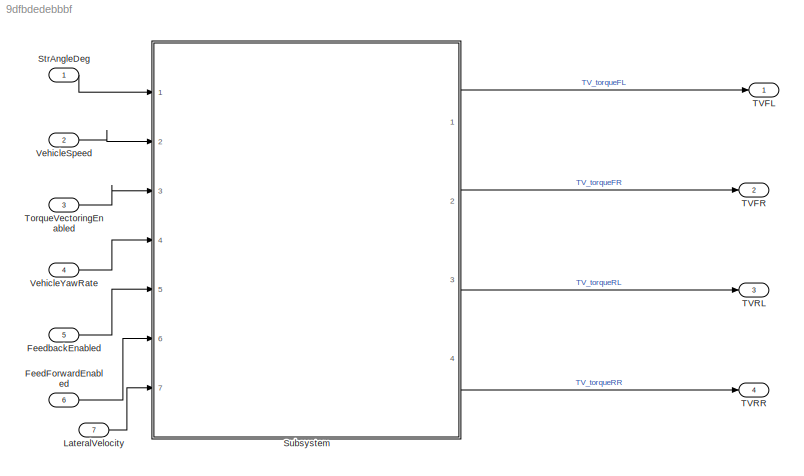
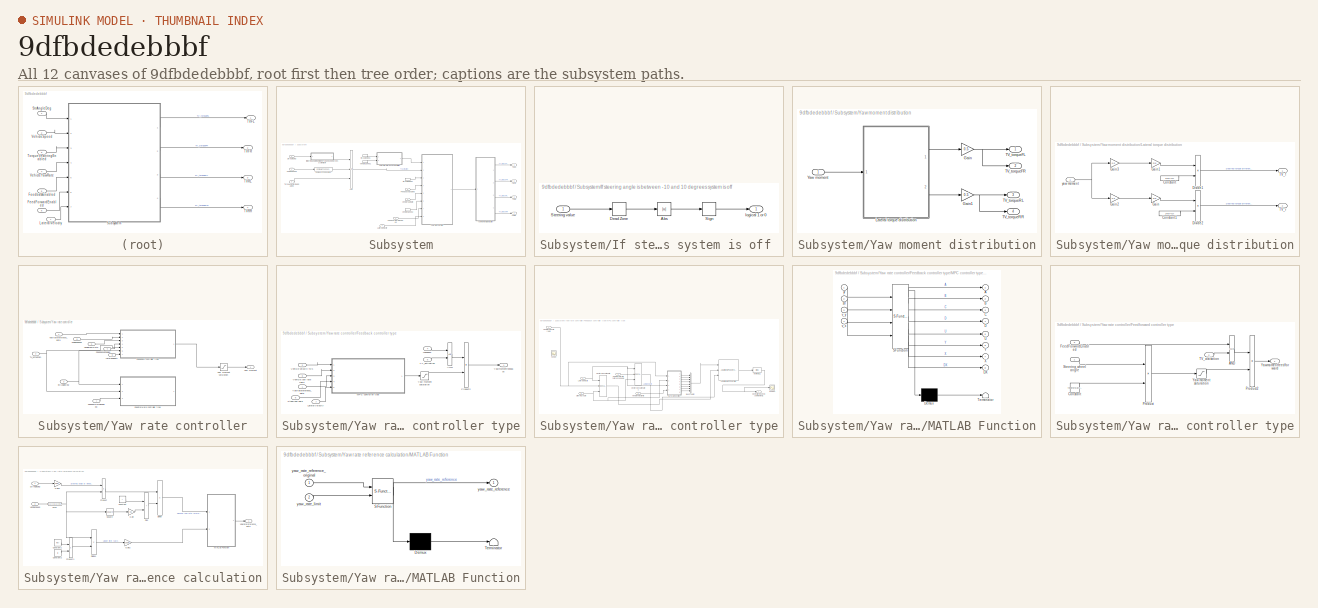
[diagram: thumbnail index - all 12 canvases of the model, root first then tree order]
MODEL slx_9dfbdedebbbf
KIND model
CONFIG AbsTol = auto
CONFIG EnableMultiTasking = off
CONFIG FixedStep = 0.001
CONFIG MaxStep = auto
CONFIG MinStep = auto
CONFIG RelTol = 1e-3
CONFIG SampleTimeConstraint = Unconstrained
CONFIG SolverName = FixedStepAuto
CONFIG StartTime = 0.0
CONFIG StopTime = 10.0
WORKSPACE source: mxarray member
WORKSPACE DeadzoneYawrateError = 10
WORKSPACE SteeringDeadzonelimit = 10
BLOCK [Inport] FeedForwardEnabled
  Port = 6
BLOCK [Inport] FeedbackEnabled
  Port = 5
BLOCK [Inport] LateralVelocity
  Port = 7
BLOCK [Inport] StrAngleDeg
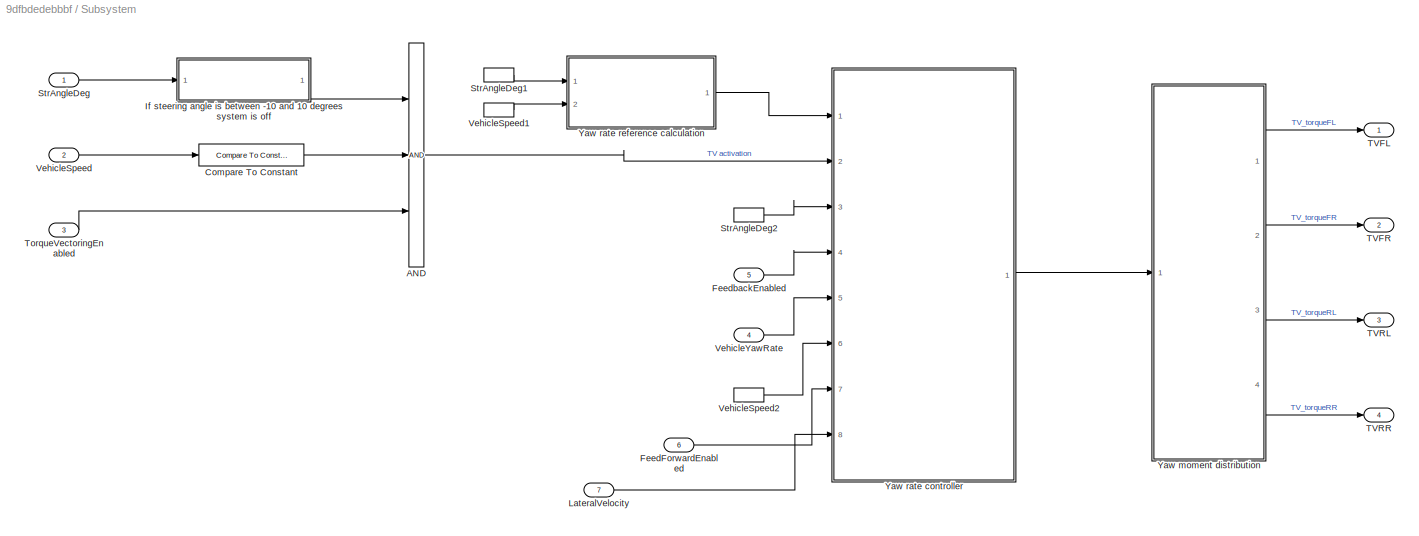
BLOCK [SubSystem] Subsystem
  Ports = [7, 4]
  RequestExecContextInheritance = off
BLOCK [Logic] Subsystem/AND
  AllPortsSameDT = off
  Inputs = 3
  OutDataTypeStr = boolean
  Ports = [3, 1]
BLOCK [Reference] Subsystem/Compare To Constant  REF=simulink/Logic and Bit
Operations/Compare
To Constant
  Ports = [1, 1]
  SourceBlock = simulink/Logic and Bit\nOperations/Compare\nTo Constant
  SourceProductBaseCode = SL
  SourceType = Compare To Constant
BLOCK [Inport] Subsystem/FeedForwardEnabled
  Port = 6
BLOCK [Inport] Subsystem/FeedbackEnabled
  Port = 5
BLOCK [SubSystem] Subsystem/If steering angle is between -10 and 10 degrees system is off 
  Ports = [1, 1]
  RequestExecContextInheritance = off
BLOCK [Abs] Subsystem/If steering angle is between -10 and 10 degrees system is off /Abs
  SaturateOnIntegerOverflow = off
BLOCK [DeadZone] Subsystem/If steering angle is between -10 and 10 degrees system is off /Dead Zone
  LowerValue = -SteeringDeadzonelimit
  UpperValue = SteeringDeadzonelimit
BLOCK [Signum] Subsystem/If steering angle is between -10 and 10 degrees system is off /Sign
BLOCK [Inport] Subsystem/If steering angle is between -10 and 10 degrees system is off /Steering value
BLOCK [Outport] Subsystem/If steering angle is between -10 and 10 degrees system is off /logical 1 or 0
BLOCK [Inport] Subsystem/LateralVelocity
  Port = 7
BLOCK [Inport] Subsystem/StrAngleDeg
BLOCK [InportShadow] Subsystem/StrAngleDeg1
BLOCK [InportShadow] Subsystem/StrAngleDeg2
BLOCK [Outport] Subsystem/TVFL
BLOCK [Outport] Subsystem/TVFR
  Port = 2
BLOCK [Outport] Subsystem/TVRL
  Port = 3
BLOCK [Outport] Subsystem/TVRR
  Port = 4
BLOCK [Inport] Subsystem/TorqueVectoringEnabled
  Port = 3
BLOCK [Inport] Subsystem/VehicleSpeed
  Port = 2
BLOCK [InportShadow] Subsystem/VehicleSpeed1
  Port = 2
BLOCK [InportShadow] Subsystem/VehicleSpeed2
  Port = 2
BLOCK [Inport] Subsystem/VehicleYawRate
  Port = 4
BLOCK [SubSystem] Subsystem/Yaw moment distribution
  Ports = [1, 4]
  RequestExecContextInheritance = off
BLOCK [Gain] Subsystem/Yaw moment distribution/Gain
  Gain = 0.5
BLOCK [Gain] Subsystem/Yaw moment distribution/Gain1
  Gain = 0.5
BLOCK [SubSystem] Subsystem/Yaw moment distribution/Lateral torque distribution
  Ports = [1, 2]
  RequestExecContextInheritance = off
BLOCK [Constant] Subsystem/Yaw moment distribution/Lateral torque distribution/Constant
  Value = 2*wr*Gr
BLOCK [Constant] Subsystem/Yaw moment distribution/Lateral torque distribution/Constant1
  Value = 2*wf*Gr
BLOCK [Product] Subsystem/Yaw moment distribution/Lateral torque distribution/Divide1
  Inputs = */
  Ports = [2, 1]
BLOCK [Product] Subsystem/Yaw moment distribution/Lateral torque distribution/Divide2
  Inputs = */
  Ports = [2, 1]
BLOCK [Gain] Subsystem/Yaw moment distribution/Lateral torque distribution/Gain
  Gain = Rd
BLOCK [Gain] Subsystem/Yaw moment distribution/Lateral torque distribution/Gain1
  Gain = Rd
BLOCK [Gain] Subsystem/Yaw moment distribution/Lateral torque distribution/Gain2
  Gain = 0.5
BLOCK [Gain] Subsystem/Yaw moment distribution/Lateral torque distribution/Gain3
  Gain = 0.5
BLOCK [Outport] Subsystem/Yaw moment distribution/Lateral torque distribution/TV_f
BLOCK [Outport] Subsystem/Yaw moment distribution/Lateral torque distribution/TV_r
  Port = 2
BLOCK [Inport] Subsystem/Yaw moment distribution/Lateral torque distribution/yaw moment
BLOCK [Outport] Subsystem/Yaw moment distribution/TV_torqueFL
BLOCK [Outport] Subsystem/Yaw moment distribution/TV_torqueFR
  Port = 2
BLOCK [Outport] Subsystem/Yaw moment distribution/TV_torqueRL
  Port = 3
BLOCK [Outport] Subsystem/Yaw moment distribution/TV_torqueRR
  Port = 4
BLOCK [Inport] Subsystem/Yaw moment distribution/Yaw moment
BLOCK [SubSystem] Subsystem/Yaw rate controller
  Ports = [8, 1]
  RequestExecContextInheritance = off
BLOCK [Inport] Subsystem/Yaw rate controller/FeedForwardEnabled
  Port = 7
BLOCK [SubSystem] Subsystem/Yaw rate controller/Feedback controller type
  Ports = [7, 1]
  RequestExecContextInheritance = off
BLOCK [Logic] Subsystem/Yaw rate controller/Feedback controller type/AND
  AllPortsSameDT = off
  OutDataTypeStr = boolean
  Ports = [2, 1]
BLOCK [Inport] Subsystem/Yaw rate controller/Feedback controller type/LateralVelocity
  Port = 7
BLOCK [SubSystem] Subsystem/Yaw rate controller/Feedback controller type/MPC controller type
  Ports = [5, 1]
  RequestExecContextInheritance = off
BLOCK [Reference] Subsystem/Yaw rate controller/Feedback controller type/MPC controller type/Adaptive MPC Controller  REF=mpclib/Adaptive MPC Controller  (lib defined in mdl_ae329e0e0455)
  Ports = [3, 1]
  SCDEnableBlockLinearizationSpecification = on
  SourceBlock = mpclib/Adaptive MPC Controller
  SourceProductBaseCode = MP
  SourceType = Adaptive MPC
BLOCK [BusCreator] Subsystem/Yaw rate controller/Feedback controller type/MPC controller type/Bus Creator
  DisplayOption = bar
  InheritFromInputs = on
  Inputs = 8
  Ports = [8, 1]
BLOCK [Outport] Subsystem/Yaw rate controller/Feedback controller type/MPC controller type/Controller desired yaw moment1
BLOCK [Inport] Subsystem/Yaw rate controller/Feedback controller type/MPC controller type/LateralVelocity
  Port = 5
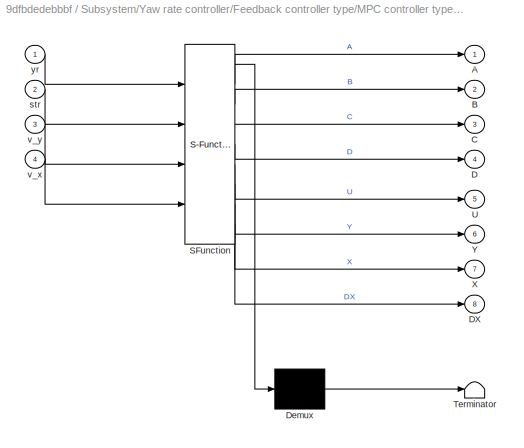
BLOCK [SubSystem] Subsystem/Yaw rate controller/Feedback controller type/MPC controller type/MATLAB Function
  ErrorFcn = Stateflow.Translate.translate
  PermitHierarchicalResolution = ExplicitOnly
  Ports = [4, 8]
  RequestExecContextInheritance = off
  SFBlockType = MATLAB Function
  TreatAsAtomicUnit = on
BLOCK [Demux] Subsystem/Yaw rate controller/Feedback controller type/MPC controller type/MATLAB Function/ Demux 
  Outputs = 1
  Ports = [1, 1]
BLOCK [S-Function] Subsystem/Yaw rate controller/Feedback controller type/MPC controller type/MATLAB Function/ SFunction 
  EnableBusSupport = on
  FunctionName = sf_sfun
  PortCounts = [4 9]
  Ports = [4, 9]
  SFcnIsStateOwnerBlock = off
  SFunctionDeploymentMode = off
  Tag = Stateflow S-Function 2
BLOCK [Terminator] Subsystem/Yaw rate controller/Feedback controller type/MPC controller type/MATLAB Function/ Terminator 
BLOCK [Outport] Subsystem/Yaw rate controller/Feedback controller type/MPC controller type/MATLAB Function/A
BLOCK [Outport] Subsystem/Yaw rate controller/Feedback controller type/MPC controller type/MATLAB Function/B
  Port = 2
BLOCK [Outport] Subsystem/Yaw rate controller/Feedback controller type/MPC controller type/MATLAB Function/C
  Port = 3
BLOCK [Outport] Subsystem/Yaw rate controller/Feedback controller type/MPC controller type/MATLAB Function/D
  Port = 4
BLOCK [Outport] Subsystem/Yaw rate controller/Feedback controller type/MPC controller type/MATLAB Function/DX
  Port = 8
BLOCK [Outport] Subsystem/Yaw rate controller/Feedback controller type/MPC controller type/MATLAB Function/U
  Port = 5
BLOCK [Outport] Subsystem/Yaw rate controller/Feedback controller type/MPC controller type/MATLAB Function/X
  Port = 7
BLOCK [Outport] Subsystem/Yaw rate controller/Feedback controller type/MPC controller type/MATLAB Function/Y
  Port = 6
BLOCK [Inport] Subsystem/Yaw rate controller/Feedback controller type/MPC controller type/MATLAB Function/str
  Port = 2
BLOCK [Inport] Subsystem/Yaw rate controller/Feedback controller type/MPC controller type/MATLAB Function/v_x
  Port = 4
BLOCK [Inport] Subsystem/Yaw rate controller/Feedback controller type/MPC controller type/MATLAB Function/v_y
  Port = 3
BLOCK [Inport] Subsystem/Yaw rate controller/Feedback controller type/MPC controller type/MATLAB Function/yr
BLOCK [Bias] Subsystem/Yaw rate controller/Feedback controller type/MPC controller type/NominalU1
BLOCK [Scope] Subsystem/Yaw rate controller/Feedback controller type/MPC controller type/Scope
  Floating = off
  NumInputPorts = 1
  Ports = [1]
  ScopeSpecificationString = Simulink.scopes.TimeScopeBlockCfg('CurrentConfiguration', extmgr.ConfigurationSet(extmgr.Configuration('Core','General UI',true),extmgr.Configuration('Core','Source UI',true),extmgr.Configuration('Sources','WiredSimulink',true,'DataLoggingVariableName','ScopeData1'),extmgr.Configuration('Visuals','Time Domain',true,'SerializedDisplays',{struct('MinYLimReal','-1.00000','MaxYLimReal','1.00000','YLab...<+1401ch>
BLOCK [Scope] Subsystem/Yaw rate controller/Feedback controller type/MPC controller type/Scope1
  Floating = off
  NumInputPorts = 1
  Ports = [1]
  ScopeSpecificationString = Simulink.scopes.TimeScopeBlockCfg('CurrentConfiguration', extmgr.ConfigurationSet(extmgr.Configuration('Core','General UI',true),extmgr.Configuration('Core','Source UI',true),extmgr.Configuration('Sources','WiredSimulink',true,'DataLoggingVariableName','ScopeData2'),extmgr.Configuration('Visuals','Time Domain',true,'SerializedDisplays',{struct('MinYLimReal','-1585922348.49359','MaxYLimReal','10034...<+1467ch>
BLOCK [Inport] Subsystem/Yaw rate controller/Feedback controller type/MPC controller type/SteeringAngle
  Port = 4
BLOCK [Concatenate] Subsystem/Yaw rate controller/Feedback controller type/MPC controller type/Vector Concatenate
  NumInputs = 3
  Ports = [3, 1]
BLOCK [Concatenate] Subsystem/Yaw rate controller/Feedback controller type/MPC controller type/Vector Concatenate1
  NumInputs = 3
  Ports = [3, 1]
BLOCK [Inport] Subsystem/Yaw rate controller/Feedback controller type/MPC controller type/Vehicle velocity m//s
  PortDimensions = 1
BLOCK [Inport] Subsystem/Yaw rate controller/Feedback controller type/MPC controller type/Vehicle yaw rate rad//s
  Port = 2
BLOCK [Inport] Subsystem/Yaw rate controller/Feedback controller type/MPC controller type/Vehicle yaw rate reference deg//s
  Port = 3
BLOCK [Product] Subsystem/Yaw rate controller/Feedback controller type/Product2
  Ports = [2, 1]
BLOCK [Inport] Subsystem/Yaw rate controller/Feedback controller type/SteeringAngle
  Port = 6
BLOCK [Inport] Subsystem/Yaw rate controller/Feedback controller type/TV_activation
  Port = 5
BLOCK [Inport] Subsystem/Yaw rate controller/Feedback controller type/Vehicle velocity m//s
  Port = 2
BLOCK [Inport] Subsystem/Yaw rate controller/Feedback controller type/Vehicle yaw rate rad//s
  Port = 3
BLOCK [Saturate] Subsystem/Yaw rate controller/Feedback controller type/Yaw moment saturation
  LowerLimit = LowerYawMoment
  UpperLimit = UpperYawMoment
BLOCK [Outport] Subsystem/Yaw rate controller/Feedback controller type/Yawmomentfeedback
BLOCK [Inport] Subsystem/Yaw rate controller/Feedback controller type/Yawratereference_data
BLOCK [Inport] Subsystem/Yaw rate controller/Feedback controller type/feedback
  Port = 4
BLOCK [Inport] Subsystem/Yaw rate controller/FeedbackEnabled
  Port = 4
BLOCK [SubSystem] Subsystem/Yaw rate controller/Feedforward controller type
  Ports = [3, 1]
  RequestExecContextInheritance = off
BLOCK [Logic] Subsystem/Yaw rate controller/Feedforward controller type/AND
  AllPortsSameDT = off
  OutDataTypeStr = boolean
  Ports = [2, 1]
BLOCK [Constant] Subsystem/Yaw rate controller/Feedforward controller type/Constant
  Value = feedforwardgain
BLOCK [Inport] Subsystem/Yaw rate controller/Feedforward controller type/FeedForwardEnabled
  Port = 3
BLOCK [Product] Subsystem/Yaw rate controller/Feedforward controller type/Product
  Ports = [2, 1]
BLOCK [Product] Subsystem/Yaw rate controller/Feedforward controller type/Product2
  Ports = [2, 1]
BLOCK [Inport] Subsystem/Yaw rate controller/Feedforward controller type/Steering wheel angle 
BLOCK [Inport] Subsystem/Yaw rate controller/Feedforward controller type/TV_activation
  Port = 2
BLOCK [Saturate] Subsystem/Yaw rate controller/Feedforward controller type/Yaw moment saturation
  LowerLimit = LowerYawMoment
  UpperLimit = UpperYawMoment
BLOCK [Outport] Subsystem/Yaw rate controller/Feedforward controller type/Yawmomentfeedforward
BLOCK [Inport] Subsystem/Yaw rate controller/LateralVelocity
  Port = 8
BLOCK [Inport] Subsystem/Yaw rate controller/StrAngleDeg
  Port = 3
BLOCK [Inport] Subsystem/Yaw rate controller/TV_activation
  Port = 2
BLOCK [Inport] Subsystem/Yaw rate controller/VehicleSpeed
  Port = 6
BLOCK [Inport] Subsystem/Yaw rate controller/VehicleYawRate
  Port = 5
BLOCK [Outport] Subsystem/Yaw rate controller/Yaw moment
BLOCK [Saturate] Subsystem/Yaw rate controller/Yaw moment saturation
  LowerLimit = LowerYawMoment
  UpperLimit = UpperYawMoment
BLOCK [Inport] Subsystem/Yaw rate controller/Yawratereference_data
BLOCK [SubSystem] Subsystem/Yaw rate reference calculation
  Ports = [2, 1]
  RequestExecContextInheritance = off
BLOCK [Constant] Subsystem/Yaw rate reference calculation/Constant
  Value = l
BLOCK [Constant] Subsystem/Yaw rate reference calculation/Constant1
  Value = myy
BLOCK [Constant] Subsystem/Yaw rate reference calculation/Constant2
  Value = g
BLOCK [Product] Subsystem/Yaw rate reference calculation/Divide
  Inputs = */
  Ports = [2, 1]
BLOCK [Product] Subsystem/Yaw rate reference calculation/Divide1
  Inputs = /*
  Ports = [2, 1]
BLOCK [Fcn] Subsystem/Yaw rate reference calculation/Fcn2
  Expr = u(1)+(u(1)==0)+eps
BLOCK [Gain] Subsystem/Yaw rate reference calculation/Gain
  Gain = Ku
BLOCK [Gain] Subsystem/Yaw rate reference calculation/Gain1
  Gain = 1/Sgr
BLOCK [Gain] Subsystem/Yaw rate reference calculation/Gain2
  Gain = 180/pi
BLOCK [SubSystem] Subsystem/Yaw rate reference calculation/MATLAB Function
  ErrorFcn = Stateflow.Translate.translate
  PermitHierarchicalResolution = ExplicitOnly
  Ports = [2, 1]
  RequestExecContextInheritance = off
  SFBlockType = MATLAB Function
  TreatAsAtomicUnit = on
BLOCK [Demux] Subsystem/Yaw rate reference calculation/MATLAB Function/ Demux 
  Outputs = 1
  Ports = [1, 1]
BLOCK [S-Function] Subsystem/Yaw rate reference calculation/MATLAB Function/ SFunction 
  EnableBusSupport = on
  FunctionName = sf_sfun
  PortCounts = [2 2]
  Ports = [2, 2]
  SFcnIsStateOwnerBlock = off
  SFunctionDeploymentMode = off
  Tag = Stateflow S-Function 6
BLOCK [Terminator] Subsystem/Yaw rate reference calculation/MATLAB Function/ Terminator 
BLOCK [Inport] Subsystem/Yaw rate reference calculation/MATLAB Function/yaw_rate_limit
  Port = 2
BLOCK [Outport] Subsystem/Yaw rate reference calculation/MATLAB Function/yaw_rate_reference
BLOCK [Inport] Subsystem/Yaw rate reference calculation/MATLAB Function/yaw_rate_reference_original
BLOCK [Sum] Subsystem/Yaw rate reference calculation/Plus
  IconShape = rectangular
  Ports = [2, 1]
BLOCK [Product] Subsystem/Yaw rate reference calculation/Product
  Ports = [2, 1]
BLOCK [Product] Subsystem/Yaw rate reference calculation/Product1
  Ports = [2, 1]
BLOCK [Math] Subsystem/Yaw rate reference calculation/Square
  Operator = square
  Ports = [1, 1]
BLOCK [Inport] Subsystem/Yaw rate reference calculation/StrAngleDeg
BLOCK [Inport] Subsystem/Yaw rate reference calculation/VehicleSpeed
  Port = 2
BLOCK [Outport] Subsystem/Yaw rate reference calculation/Yawratereference_data
BLOCK [Outport] TVFL
BLOCK [Outport] TVFR
  Port = 2
BLOCK [Outport] TVRL
  Port = 3
BLOCK [Outport] TVRR
  Port = 4
BLOCK [Inport] TorqueVectoringEnabled
  Port = 3
BLOCK [Inport] VehicleSpeed
  Port = 2
BLOCK [Inport] VehicleYawRate
  Port = 4
LINE FeedForwardEnabled:1 -> Subsystem:6
LINE FeedbackEnabled:1 -> Subsystem:5
LINE LateralVelocity:1 -> Subsystem:7
LINE StrAngleDeg:1 -> Subsystem:1
LINE Subsystem/AND:1 -> Subsystem/Yaw rate controller:2
LINE Subsystem/Compare To Constant:1 -> Subsystem/AND:2
LINE Subsystem/FeedForwardEnabled:1 -> Subsystem/Yaw rate controller:7
LINE Subsystem/FeedbackEnabled:1 -> Subsystem/Yaw rate controller:4
LINE Subsystem/If steering angle is between -10 and 10 degrees system is off /Abs:1 -> Subsystem/If steering angle is between -10 and 10 degrees system is off /Sign:1
LINE Subsystem/If steering angle is between -10 and 10 degrees system is off /Dead Zone:1 -> Subsystem/If steering angle is between -10 and 10 degrees system is off /Abs:1
LINE Subsystem/If steering angle is between -10 and 10 degrees system is off /Sign:1 -> Subsystem/If steering angle is between -10 and 10 degrees system is off /logical 1 or 0:1
LINE Subsystem/If steering angle is between -10 and 10 degrees system is off /Steering value:1 -> Subsystem/If steering angle is between -10 and 10 degrees system is off /Dead Zone:1
LINE Subsystem/If steering angle is between -10 and 10 degrees system is off :1 -> Subsystem/AND:1
LINE Subsystem/LateralVelocity:1 -> Subsystem/Yaw rate controller:8
LINE Subsystem/StrAngleDeg1:1 -> Subsystem/Yaw rate reference calculation:1
LINE Subsystem/StrAngleDeg2:1 -> Subsystem/Yaw rate controller:3
LINE Subsystem/StrAngleDeg:1 -> Subsystem/If steering angle is between -10 and 10 degrees system is off :1
LINE Subsystem/TorqueVectoringEnabled:1 -> Subsystem/AND:3
LINE Subsystem/VehicleSpeed1:1 -> Subsystem/Yaw rate reference calculation:2
LINE Subsystem/VehicleSpeed2:1 -> Subsystem/Yaw rate controller:6
LINE Subsystem/VehicleSpeed:1 -> Subsystem/Compare To Constant:1
LINE Subsystem/VehicleYawRate:1 -> Subsystem/Yaw rate controller:5
NET Subsystem/Yaw moment distribution/Gain1:1 -> Subsystem/Yaw moment distribution/TV_torqueRL:1, Subsystem/Yaw moment distribution/TV_torqueRR:1
NET Subsystem/Yaw moment distribution/Gain:1 -> Subsystem/Yaw moment distribution/TV_torqueFL:1, Subsystem/Yaw moment distribution/TV_torqueFR:1
LINE Subsystem/Yaw moment distribution/Lateral torque distribution/Constant1:1 -> Subsystem/Yaw moment distribution/Lateral torque distribution/Divide2:2
LINE Subsystem/Yaw moment distribution/Lateral torque distribution/Constant:1 -> Subsystem/Yaw moment distribution/Lateral torque distribution/Divide1:2
LINE Subsystem/Yaw moment distribution/Lateral torque distribution/Divide1:1 -> Subsystem/Yaw moment distribution/Lateral torque distribution/TV_f:1
LINE Subsystem/Yaw moment distribution/Lateral torque distribution/Divide2:1 -> Subsystem/Yaw moment distribution/Lateral torque distribution/TV_r:1
LINE Subsystem/Yaw moment distribution/Lateral torque distribution/Gain1:1 -> Subsystem/Yaw moment distribution/Lateral torque distribution/Divide1:1
LINE Subsystem/Yaw moment distribution/Lateral torque distribution/Gain2:1 -> Subsystem/Yaw moment distribution/Lateral torque distribution/Gain:1
LINE Subsystem/Yaw moment distribution/Lateral torque distribution/Gain3:1 -> Subsystem/Yaw moment distribution/Lateral torque distribution/Gain1:1
LINE Subsystem/Yaw moment distribution/Lateral torque distribution/Gain:1 -> Subsystem/Yaw moment distribution/Lateral torque distribution/Divide2:1
NET Subsystem/Yaw moment distribution/Lateral torque distribution/yaw moment:1 -> Subsystem/Yaw moment distribution/Lateral torque distribution/Gain2:1, Subsystem/Yaw moment distribution/Lateral torque distribution/Gain3:1
LINE Subsystem/Yaw moment distribution/Lateral torque distribution:1 -> Subsystem/Yaw moment distribution/Gain:1
LINE Subsystem/Yaw moment distribution/Lateral torque distribution:2 -> Subsystem/Yaw moment distribution/Gain1:1
LINE Subsystem/Yaw moment distribution/Yaw moment:1 -> Subsystem/Yaw moment distribution/Lateral torque distribution:1
LINE Subsystem/Yaw moment distribution:1 -> Subsystem/TVFL:1
LINE Subsystem/Yaw moment distribution:2 -> Subsystem/TVFR:1
LINE Subsystem/Yaw moment distribution:3 -> Subsystem/TVRL:1
LINE Subsystem/Yaw moment distribution:4 -> Subsystem/TVRR:1
LINE Subsystem/Yaw rate controller/FeedForwardEnabled:1 -> Subsystem/Yaw rate controller/Feedforward controller type:3
LINE Subsystem/Yaw rate controller/Feedback controller type/AND:1 -> Subsystem/Yaw rate controller/Feedback controller type/Product2:1
LINE Subsystem/Yaw rate controller/Feedback controller type/LateralVelocity:1 -> Subsystem/Yaw rate controller/Feedback controller type/MPC controller type:5
LINE Subsystem/Yaw rate controller/Feedback controller type/MPC controller type/Adaptive MPC Controller:1 -> Subsystem/Yaw rate controller/Feedback controller type/MPC controller type/NominalU1:1
LINE Subsystem/Yaw rate controller/Feedback controller type/MPC controller type/Bus Creator:1 -> Subsystem/Yaw rate controller/Feedback controller type/MPC controller type/Adaptive MPC Controller:1
NET Subsystem/Yaw rate controller/Feedback controller type/MPC controller type/LateralVelocity:1 -> Subsystem/Yaw rate controller/Feedback controller type/MPC controller type/MATLAB Function:3, Subsystem/Yaw rate controller/Feedback controller type/MPC controller type/Vector Concatenate1:1, Subsystem/Yaw rate controller/Feedback controller type/MPC controller type/Vector Concatenate:1
LINE Subsystem/Yaw rate controller/Feedback controller type/MPC controller type/MATLAB Function:1 -> Subsystem/Yaw rate controller/Feedback controller type/MPC controller type/Bus Creator:1
LINE Subsystem/Yaw rate controller/Feedback controller type/MPC controller type/MATLAB Function:2 -> Subsystem/Yaw rate controller/Feedback controller type/MPC controller type/Bus Creator:2
LINE Subsystem/Yaw rate controller/Feedback controller type/MPC controller type/MATLAB Function:3 -> Subsystem/Yaw rate controller/Feedback controller type/MPC controller type/Bus Creator:3
LINE Subsystem/Yaw rate controller/Feedback controller type/MPC controller type/MATLAB Function:4 -> Subsystem/Yaw rate controller/Feedback controller type/MPC controller type/Bus Creator:4
LINE Subsystem/Yaw rate controller/Feedback controller type/MPC controller type/MATLAB Function:5 -> Subsystem/Yaw rate controller/Feedback controller type/MPC controller type/Bus Creator:5
LINE Subsystem/Yaw rate controller/Feedback controller type/MPC controller type/MATLAB Function:6 -> Subsystem/Yaw rate controller/Feedback controller type/MPC controller type/Bus Creator:6
LINE Subsystem/Yaw rate controller/Feedback controller type/MPC controller type/MATLAB Function:7 -> Subsystem/Yaw rate controller/Feedback controller type/MPC controller type/Bus Creator:7
LINE Subsystem/Yaw rate controller/Feedback controller type/MPC controller type/MATLAB Function:8 -> Subsystem/Yaw rate controller/Feedback controller type/MPC controller type/Bus Creator:8
NET Subsystem/Yaw rate controller/Feedback controller type/MPC controller type/NominalU1:1 -> Subsystem/Yaw rate controller/Feedback controller type/MPC controller type/Controller desired yaw moment1:1, Subsystem/Yaw rate controller/Feedback controller type/MPC controller type/Scope1:1
NET Subsystem/Yaw rate controller/Feedback controller type/MPC controller type/SteeringAngle:1 -> Subsystem/Yaw rate controller/Feedback controller type/MPC controller type/MATLAB Function:2, Subsystem/Yaw rate controller/Feedback controller type/MPC controller type/Vector Concatenate1:3, Subsystem/Yaw rate controller/Feedback controller type/MPC controller type/Vector Concatenate:3
LINE Subsystem/Yaw rate controller/Feedback controller type/MPC controller type/Vector Concatenate1:1 -> Subsystem/Yaw rate controller/Feedback controller type/MPC controller type/Adaptive MPC Controller:3
LINE Subsystem/Yaw rate controller/Feedback controller type/MPC controller type/Vector Concatenate:1 -> Subsystem/Yaw rate controller/Feedback controller type/MPC controller type/Adaptive MPC Controller:2
LINE Subsystem/Yaw rate controller/Feedback controller type/MPC controller type/Vehicle velocity m//s:1 -> Subsystem/Yaw rate controller/Feedback controller type/MPC controller type/MATLAB Function:4
NET Subsystem/Yaw rate controller/Feedback controller type/MPC controller type/Vehicle yaw rate rad//s:1 -> Subsystem/Yaw rate controller/Feedback controller type/MPC controller type/MATLAB Function:1, Subsystem/Yaw rate controller/Feedback controller type/MPC controller type/Vector Concatenate:2
LINE Subsystem/Yaw rate controller/Feedback controller type/MPC controller type/Vehicle yaw rate reference deg//s:1 -> Subsystem/Yaw rate controller/Feedback controller type/MPC controller type/Vector Concatenate1:2
LINE Subsystem/Yaw rate controller/Feedback controller type/MPC controller type:1 -> Subsystem/Yaw rate controller/Feedback controller type/Yaw moment saturation:1
LINE Subsystem/Yaw rate controller/Feedback controller type/Product2:1 -> Subsystem/Yaw rate controller/Feedback controller type/Yawmomentfeedback:1
LINE Subsystem/Yaw rate controller/Feedback controller type/SteeringAngle:1 -> Subsystem/Yaw rate controller/Feedback controller type/MPC controller type:4
LINE Subsystem/Yaw rate controller/Feedback controller type/TV_activation:1 -> Subsystem/Yaw rate controller/Feedback controller type/AND:2
LINE Subsystem/Yaw rate controller/Feedback controller type/Vehicle velocity m//s:1 -> Subsystem/Yaw rate controller/Feedback controller type/MPC controller type:1
LINE Subsystem/Yaw rate controller/Feedback controller type/Vehicle yaw rate rad//s:1 -> Subsystem/Yaw rate controller/Feedback controller type/MPC controller type:2
LINE Subsystem/Yaw rate controller/Feedback controller type/Yaw moment saturation:1 -> Subsystem/Yaw rate controller/Feedback controller type/Product2:2
LINE Subsystem/Yaw rate controller/Feedback controller type/Yawratereference_data:1 -> Subsystem/Yaw rate controller/Feedback controller type/MPC controller type:3
LINE Subsystem/Yaw rate controller/Feedback controller type/feedback:1 -> Subsystem/Yaw rate controller/Feedback controller type/AND:1
LINE Subsystem/Yaw rate controller/Feedback controller type:1 -> Subsystem/Yaw rate controller/Yaw moment saturation:1
LINE Subsystem/Yaw rate controller/FeedbackEnabled:1 -> Subsystem/Yaw rate controller/Feedback controller type:4
LINE Subsystem/Yaw rate controller/Feedforward controller type/AND:1 -> Subsystem/Yaw rate controller/Feedforward controller type/Product2:1
LINE Subsystem/Yaw rate controller/Feedforward controller type/Constant:1 -> Subsystem/Yaw rate controller/Feedforward controller type/Product:2
LINE Subsystem/Yaw rate controller/Feedforward controller type/FeedForwardEnabled:1 -> Subsystem/Yaw rate controller/Feedforward controller type/AND:1
LINE Subsystem/Yaw rate controller/Feedforward controller type/Product2:1 -> Subsystem/Yaw rate controller/Feedforward controller type/Yawmomentfeedforward:1
LINE Subsystem/Yaw rate controller/Feedforward controller type/Product:1 -> Subsystem/Yaw rate controller/Feedforward controller type/Yaw moment saturation:1
LINE Subsystem/Yaw rate controller/Feedforward controller type/Steering wheel angle :1 -> Subsystem/Yaw rate controller/Feedforward controller type/Product:1
LINE Subsystem/Yaw rate controller/Feedforward controller type/TV_activation:1 -> Subsystem/Yaw rate controller/Feedforward controller type/AND:2
LINE Subsystem/Yaw rate controller/Feedforward controller type/Yaw moment saturation:1 -> Subsystem/Yaw rate controller/Feedforward controller type/Product2:2
LINE Subsystem/Yaw rate controller/LateralVelocity:1 -> Subsystem/Yaw rate controller/Feedback controller type:7
NET Subsystem/Yaw rate controller/StrAngleDeg:1 -> Subsystem/Yaw rate controller/Feedback controller type:6, Subsystem/Yaw rate controller/Feedforward controller type:1
NET Subsystem/Yaw rate controller/TV_activation:1 -> Subsystem/Yaw rate controller/Feedback controller type:5, Subsystem/Yaw rate controller/Feedforward controller type:2
LINE Subsystem/Yaw rate controller/VehicleSpeed:1 -> Subsystem/Yaw rate controller/Feedback controller type:2
LINE Subsystem/Yaw rate controller/VehicleYawRate:1 -> Subsystem/Yaw rate controller/Feedback controller type:3
LINE Subsystem/Yaw rate controller/Yaw moment saturation:1 -> Subsystem/Yaw rate controller/Yaw moment:1
LINE Subsystem/Yaw rate controller/Yawratereference_data:1 -> Subsystem/Yaw rate controller/Feedback controller type:1
LINE Subsystem/Yaw rate controller:1 -> Subsystem/Yaw moment distribution:1
LINE Subsystem/Yaw rate reference calculation/Constant1:1 -> Subsystem/Yaw rate reference calculation/Product1:1
LINE Subsystem/Yaw rate reference calculation/Constant2:1 -> Subsystem/Yaw rate reference calculation/Product1:2
LINE Subsystem/Yaw rate reference calculation/Constant:1 -> Subsystem/Yaw rate reference calculation/Plus:1
LINE Subsystem/Yaw rate reference calculation/Divide1:1 -> Subsystem/Yaw rate reference calculation/Gain2:1
LINE Subsystem/Yaw rate reference calculation/Divide:1 -> Subsystem/Yaw rate reference calculation/MATLAB Function:1
NET Subsystem/Yaw rate reference calculation/Fcn2:1 -> Subsystem/Yaw rate reference calculation/Divide1:1, Subsystem/Yaw rate reference calculation/Product:2, Subsystem/Yaw rate reference calculation/Square:1
LINE Subsystem/Yaw rate reference calculation/Gain1:1 -> Subsystem/Yaw rate reference calculation/Product:1
LINE Subsystem/Yaw rate reference calculation/Gain2:1 -> Subsystem/Yaw rate reference calculation/MATLAB Function:2
LINE Subsystem/Yaw rate reference calculation/Gain:1 -> Subsystem/Yaw rate reference calculation/Plus:2
LINE Subsystem/Yaw rate reference calculation/MATLAB Function:1 -> Subsystem/Yaw rate reference calculation/Yawratereference_data:1
LINE Subsystem/Yaw rate reference calculation/Plus:1 -> Subsystem/Yaw rate reference calculation/Divide:2
LINE Subsystem/Yaw rate reference calculation/Product1:1 -> Subsystem/Yaw rate reference calculation/Divide1:2
LINE Subsystem/Yaw rate reference calculation/Product:1 -> Subsystem/Yaw rate reference calculation/Divide:1
LINE Subsystem/Yaw rate reference calculation/Square:1 -> Subsystem/Yaw rate reference calculation/Gain:1
LINE Subsystem/Yaw rate reference calculation/StrAngleDeg:1 -> Subsystem/Yaw rate reference calculation/Gain1:1
LINE Subsystem/Yaw rate reference calculation/VehicleSpeed:1 -> Subsystem/Yaw rate reference calculation/Fcn2:1
LINE Subsystem/Yaw rate reference calculation:1 -> Subsystem/Yaw rate controller:1
LINE Subsystem:1 -> TVFL:1
LINE Subsystem:2 -> TVFR:1
LINE Subsystem:3 -> TVRL:1
LINE Subsystem:4 -> TVRR:1
LINE TorqueVectoringEnabled:1 -> Subsystem:3
LINE VehicleSpeed:1 -> Subsystem:2
LINE VehicleYawRate:1 -> Subsystem:4
note: NET lines group one-source signal fan-out (src -> all destinations, sorted); 1:1 wires keep LINE
CHART Subsystem/Yaw rate controller/Feedback controller type/MPC controller type/MATLAB Function states=1 transitions=1
  STATE_LABEL 'eML_blk_kernel()'
  STATE_LABEL 'SCRIPT:\nfunction [A,B,C,D,U,Y,X,DX] = fcn(yr,str,v_y,v_x)\n\nCr = 1;\nCf = 1;\nm = 200;\nIzz = 100;\nlf = 0.7650;\nlr = 0.7650;\n\n\nA = [-(Cr + Cf)/(m), (-v_x^2*m-Cf*lf + Cr*lr)/(m),Cf/m; (lr*Cr-lf*Cf)/(Izz), (lf^2*Cf-lr^2*Cr)/(Izz),lf*Cf/Izz;0,0,0];\nB = [0; 1/Izz;0];\nC = eye(3);\nD = zeros([3,1]);\nX = [v_y;yr;str];\nY = [v_y;yr;str];\nU = [0];\n%A= eye(3)+0.001*A;\n%B=0.001*B;\n%M=expm([A,B;zeros(1,4)]*0.001);\n...<+39ch>'
CHART Subsystem/Yaw rate reference calculation/MATLAB Function states=1 transitions=1
  STATE_LABEL 'eML_blk_kernel()'
  STATE_LABEL 'SCRIPT:\nfunction yaw_rate_reference = fcn(yaw_rate_reference_original,yaw_rate_limit)\n\nif abs(yaw_rate_reference_original) < yaw_rate_limit\n    yaw_rate_reference = yaw_rate_reference_original ;\nelse \n    yaw_rate_reference = yaw_rate_limit*sign(yaw_rate_reference_original) ; \nend\n'
CHART  states=0 transitions=0
CHART  states=0 transitions=0
